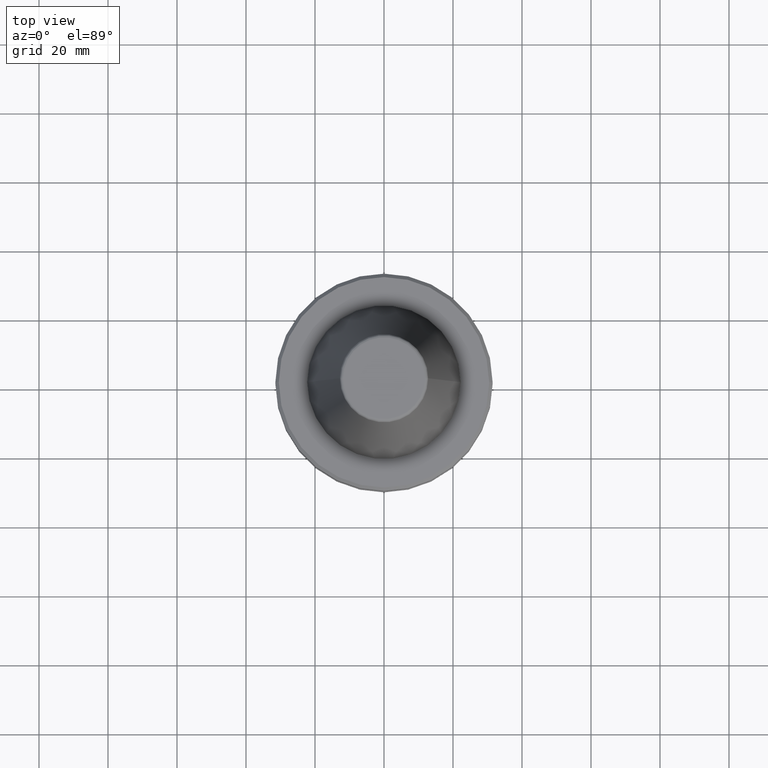
[diagram: clean part render]
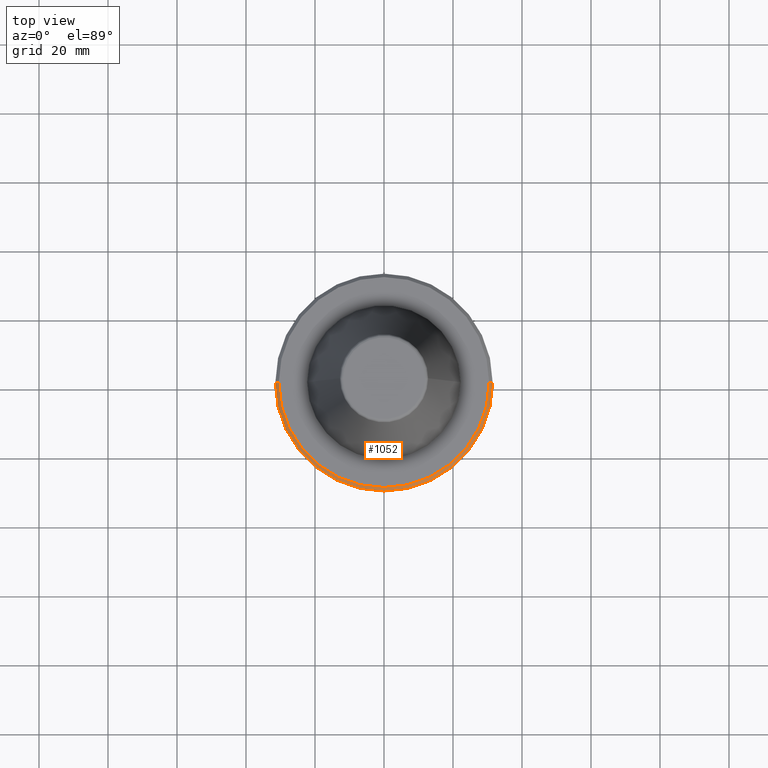
[diagram: same view with one face highlighted and labeled with its STEP entity id]
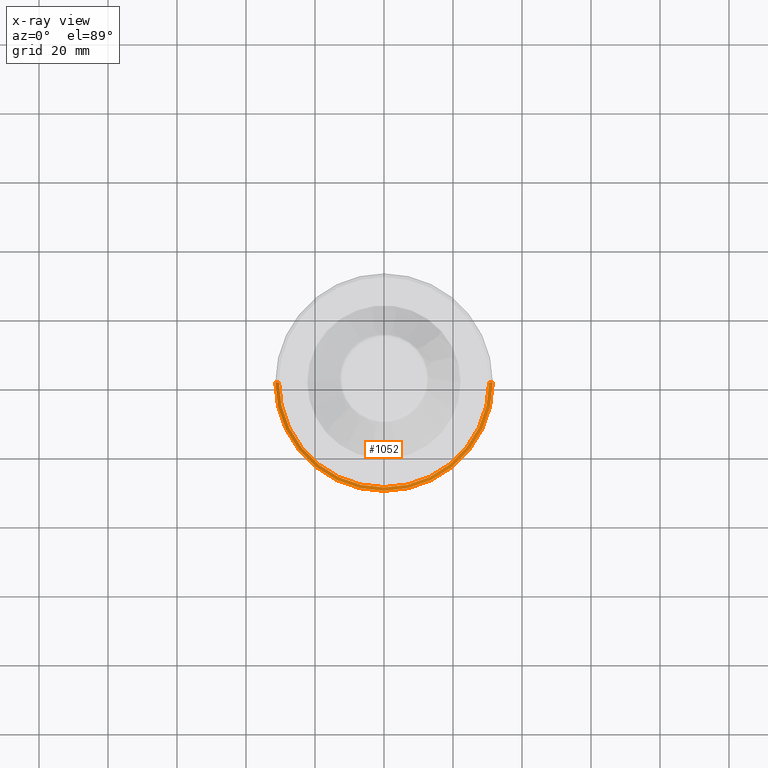
[diagram: x-ray of the same camera — body ghosted, the highlighted face saturated]
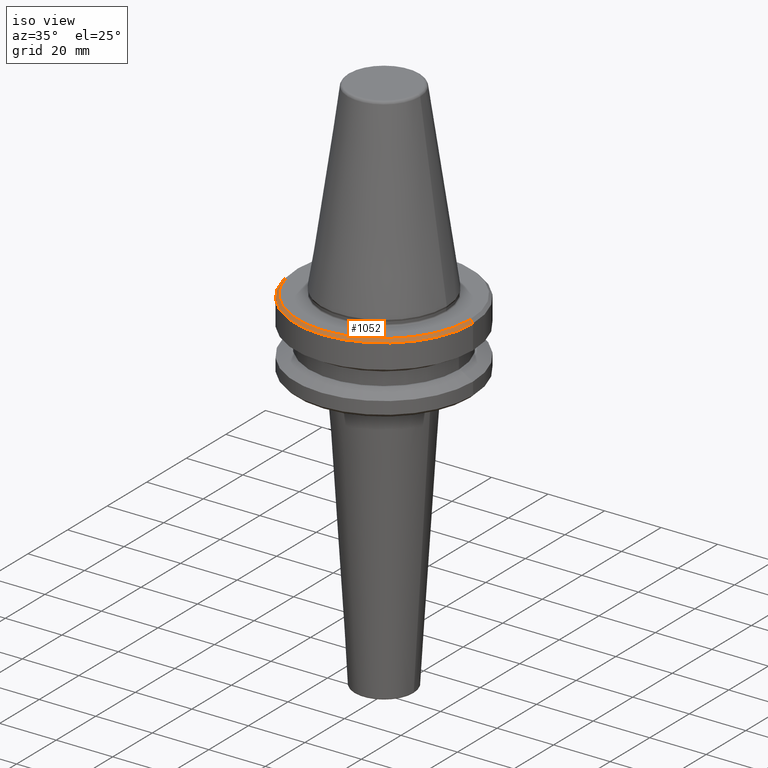
[diagram: same view with one face highlighted and labeled with its STEP entity id]
A machine part, top view. The second image highlights one B-rep face of the part: STEP entity #1052.
The next image is the same camera in x-ray: the body ghosted, the highlighted face saturated — about 0% of this face is hidden behind the body in this view.
A second angle (iso view) of the same face is appended — the face is thin or edge-on in the first view.
In plain terms, the highlighted conical surface has half-angle 45 deg.
Its self-contained STEP definition (entity closure, byte-faithful):
#28 = CARTESIAN_POINT ( 'NONE',  ( 0.0000000000000000000, 0.0000000000000000000, -67.40000000000034700 ) ) ;
#63 = DIRECTION ( 'NONE',  ( -0.0000000000000000000, -0.0000000000000000000, 1.000000000000000000 ) ) ;
#74 = CARTESIAN_POINT ( 'NONE',  ( 30.49999999999997200, 3.796405077356798300E-015, -67.40000000000034700 ) ) ;
#80 = EDGE_CURVE ( 'NONE', #1027, #919, #547, .T. ) ;
#104 = EDGE_CURVE ( 'NONE', #919, #835, #287, .T. ) ;
#115 = LINE ( 'NONE', #1037, #959 ) ;
#116 = DIRECTION ( 'NONE',  ( -1.000000000000000000, 0.0000000000000000000, 0.0000000000000000000 ) ) ;
#127 = CIRCLE ( 'NONE', #696, 30.49999999999997200 ) ;
#179 = AXIS2_PLACEMENT_3D ( 'NONE', #655, #63, #863 ) ;
#220 = CARTESIAN_POINT ( 'NONE',  ( 31.50000000000008500, 0.0000000000000000000, -68.40000000000046000 ) ) ;
#244 = ORIENTED_EDGE ( 'NONE', *, *, #104, .T. ) ;
#261 = DIRECTION ( 'NONE',  ( 0.7071067811865474600, 8.659560562354931600E-017, -0.7071067811865475700 ) ) ;
#276 = DIRECTION ( 'NONE',  ( -0.0000000000000000000, -0.0000000000000000000, 1.000000000000000000 ) ) ;
#278 = ORIENTED_EDGE ( 'NONE', *, *, #80, .T. ) ;
#287 = CIRCLE ( 'NONE', #179, 31.50000000000008500 ) ;
#322 = DIRECTION ( 'NONE',  ( -0.7071067811865474600, 0.0000000000000000000, -0.7071067811865475700 ) ) ;
#344 = CARTESIAN_POINT ( 'NONE',  ( -30.49999999999997200, 0.0000000000000000000, -67.40000000000034700 ) ) ;
#372 = CARTESIAN_POINT ( 'NONE',  ( -30.49999999999997200, 0.0000000000000000000, -67.40000000000034700 ) ) ;
#403 = EDGE_CURVE ( 'NONE', #1027, #612, #127, .T. ) ;
#437 = CARTESIAN_POINT ( 'NONE',  ( 0.0000000000000000000, 0.0000000000000000000, -67.40000000000034700 ) ) ;
#534 = EDGE_LOOP ( 'NONE', ( #878, #744, #278, #244 ) ) ;
#547 = LINE ( 'NONE', #372, #645 ) ;
#609 = DIRECTION ( 'NONE',  ( 1.000000000000000000, 0.0000000000000000000, 0.0000000000000000000 ) ) ;
#612 = VERTEX_POINT ( 'NONE', #74 ) ;
#645 = VECTOR ( 'NONE', #322, 1000.000000000000000 ) ;
#650 = EDGE_CURVE ( 'NONE', #612, #835, #115, .T. ) ;
#655 = CARTESIAN_POINT ( 'NONE',  ( 0.0000000000000000000, 0.0000000000000000000, -68.40000000000046000 ) ) ;
#696 = AXIS2_PLACEMENT_3D ( 'NONE', #437, #276, #609 ) ;
#721 = FACE_OUTER_BOUND ( 'NONE', #534, .T. ) ;
#744 = ORIENTED_EDGE ( 'NONE', *, *, #403, .F. ) ;
#778 = CARTESIAN_POINT ( 'NONE',  ( -31.50000000000008500, 3.857637417314172900E-015, -68.40000000000046000 ) ) ;
#830 = AXIS2_PLACEMENT_3D ( 'NONE', #28, #877, #116 ) ;
#835 = VERTEX_POINT ( 'NONE', #220 ) ;
#863 = DIRECTION ( 'NONE',  ( 1.000000000000000000, 0.0000000000000000000, 0.0000000000000000000 ) ) ;
#877 = DIRECTION ( 'NONE',  ( 0.0000000000000000000, 0.0000000000000000000, -1.000000000000000000 ) ) ;
#878 = ORIENTED_EDGE ( 'NONE', *, *, #650, .F. ) ;
#910 = CONICAL_SURFACE ( 'NONE', #830, 30.49999999999997200, 0.7853981633974482800 ) ;
#919 = VERTEX_POINT ( 'NONE', #778 ) ;
#959 = VECTOR ( 'NONE', #261, 1000.000000000000000 ) ;
#1027 = VERTEX_POINT ( 'NONE', #344 ) ;
#1037 = CARTESIAN_POINT ( 'NONE',  ( 30.49999999999997200, 3.735172737399423600E-015, -67.40000000000034700 ) ) ;
#1052 = ADVANCED_FACE ( 'NONE', ( #721 ), #910, .T. ) ;